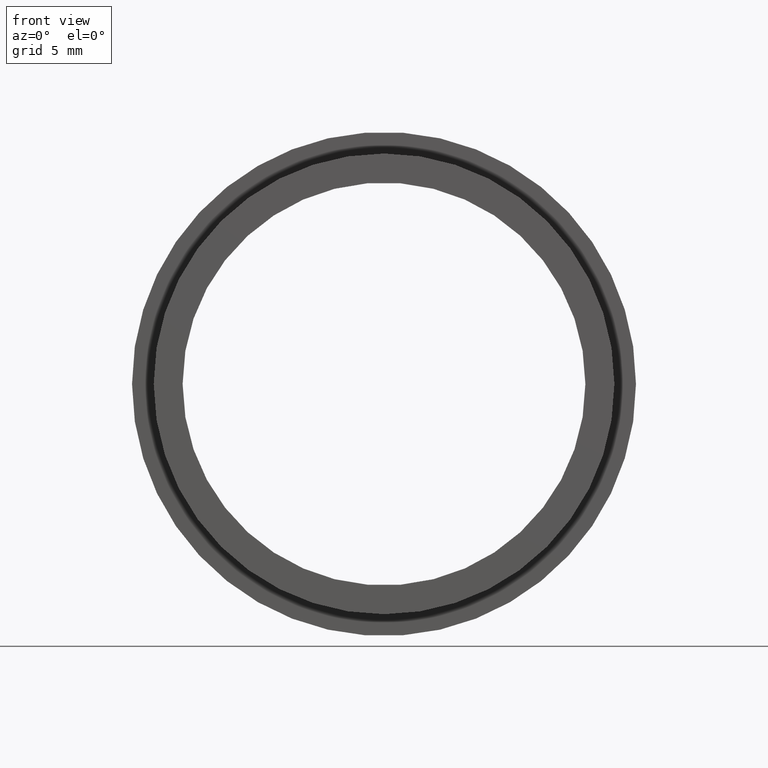
[diagram: clean part render]
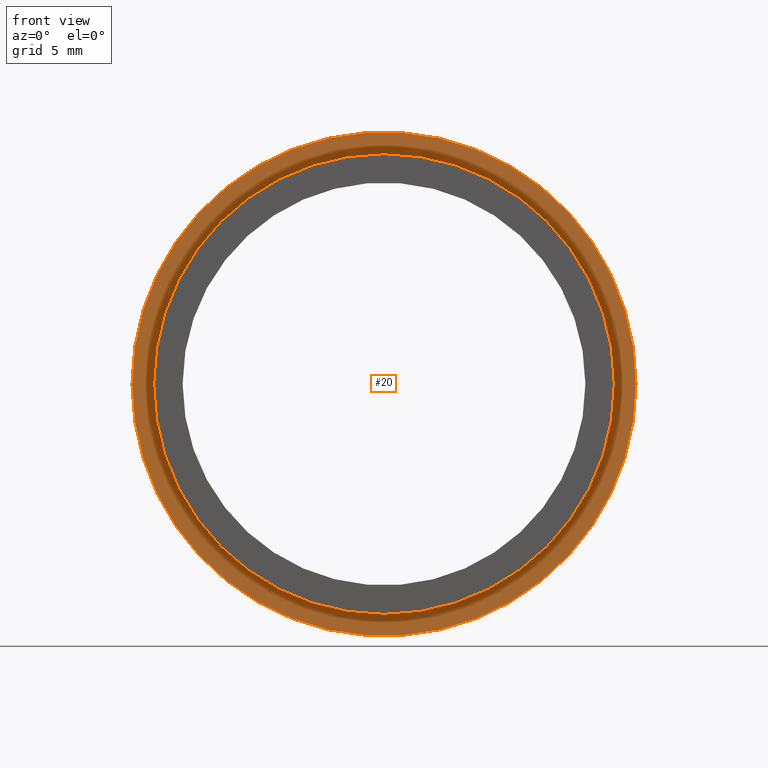
[diagram: same view with one face highlighted and labeled with its STEP entity id]
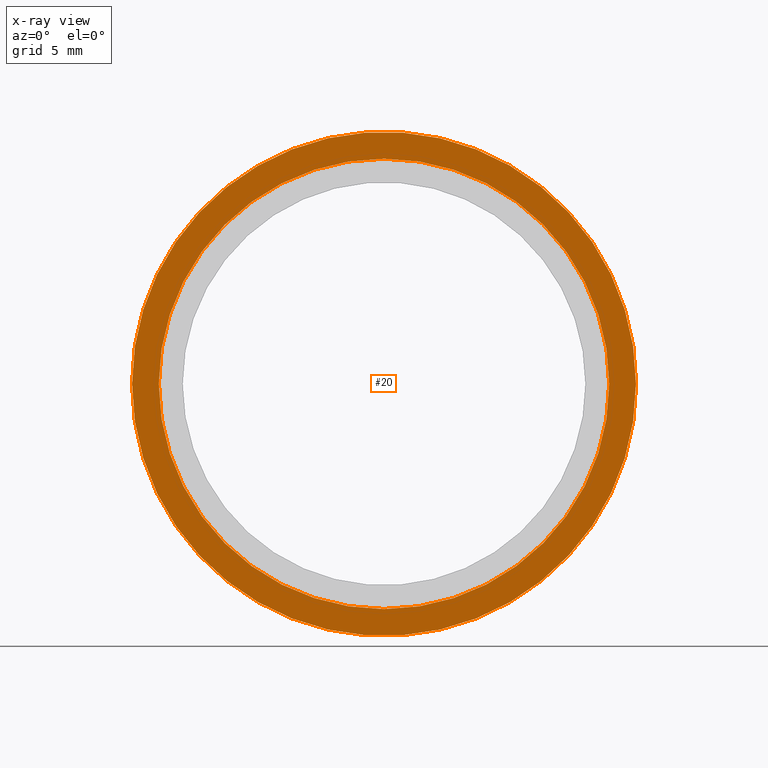
[diagram: x-ray of the same camera — body ghosted, the highlighted face saturated]
A machine part, front view. The second image highlights one B-rep face of the part: STEP entity #20.
The next image is the same camera in x-ray: the body ghosted, the highlighted face saturated — about 0% of this face is hidden behind the body in this view.
In plain terms, the highlighted planar face has unit normal (-0, 1, 0).
Its self-contained STEP definition (entity closure, byte-faithful):
#20 = ADVANCED_FACE ( 'NONE', ( #433, #328 ), #121, .F. ) ;
#28 = CARTESIAN_POINT ( 'NONE',  ( 11.35000000000000100, 2.954535588880335500, 0.0000000000000000000 ) ) ;
#36 = VERTEX_POINT ( 'NONE', #160 ) ;
#73 = EDGE_LOOP ( 'NONE', ( #346, #111 ) ) ;
#86 = CARTESIAN_POINT ( 'NONE',  ( 1.706114563249712500E-015, 2.954535588880332900, 0.0000000000000000000 ) ) ;
#90 = DIRECTION ( 'NONE',  ( -1.000000000000000000, -1.224646799147351000E-016, 0.0000000000000000000 ) ) ;
#105 = AXIS2_PLACEMENT_3D ( 'NONE', #86, #320, #384 ) ;
#106 = EDGE_CURVE ( 'NONE', #297, #405, #151, .T. ) ;
#111 = ORIENTED_EDGE ( 'NONE', *, *, #319, .T. ) ;
#121 = PLANE ( 'NONE',  #140 ) ;
#128 = AXIS2_PLACEMENT_3D ( 'NONE', #182, #374, #188 ) ;
#140 = AXIS2_PLACEMENT_3D ( 'NONE', #28, #225, #90 ) ;
#151 = CIRCLE ( 'NONE', #362, 12.69999999999999800 ) ;
#160 = CARTESIAN_POINT ( 'NONE',  ( -11.34999999999999800, 2.954535588880331500, 0.0000000000000000000 ) ) ;
#162 = ORIENTED_EDGE ( 'NONE', *, *, #106, .F. ) ;
#166 = AXIS2_PLACEMENT_3D ( 'NONE', #221, #313, #285 ) ;
#174 = EDGE_CURVE ( 'NONE', #36, #262, #395, .T. ) ;
#182 = CARTESIAN_POINT ( 'NONE',  ( 1.706114563249712500E-015, 2.954535588880332900, 0.0000000000000000000 ) ) ;
#184 = DIRECTION ( 'NONE',  ( -1.000000000000000000, -1.365923996832131900E-016, 0.0000000000000000000 ) ) ;
#188 = DIRECTION ( 'NONE',  ( -1.000000000000000000, -1.365923996832131900E-016, 0.0000000000000000000 ) ) ;
#211 = CIRCLE ( 'NONE', #105, 11.35000000000000000 ) ;
#221 = CARTESIAN_POINT ( 'NONE',  ( 1.706114563249712500E-015, 2.954535588880332900, 0.0000000000000000000 ) ) ;
#225 = DIRECTION ( 'NONE',  ( -1.224646799147351000E-016, 1.000000000000000000, 0.0000000000000000000 ) ) ;
#234 = CIRCLE ( 'NONE', #128, 12.69999999999999800 ) ;
#252 = CARTESIAN_POINT ( 'NONE',  ( 11.35000000000000100, 2.954535588880334200, 1.389974117032245900E-015 ) ) ;
#262 = VERTEX_POINT ( 'NONE', #252 ) ;
#285 = DIRECTION ( 'NONE',  ( -1.000000000000000000, -1.146293045799652200E-016, 0.0000000000000000000 ) ) ;
#286 = DIRECTION ( 'NONE',  ( -1.224646799147351000E-016, 1.000000000000000000, -0.0000000000000000000 ) ) ;
#297 = VERTEX_POINT ( 'NONE', #337 ) ;
#313 = DIRECTION ( 'NONE',  ( -1.224646799147351000E-016, 1.000000000000000000, -0.0000000000000000000 ) ) ;
#319 = EDGE_CURVE ( 'NONE', #262, #36, #211, .T. ) ;
#320 = DIRECTION ( 'NONE',  ( -1.224646799147351000E-016, 1.000000000000000000, -0.0000000000000000000 ) ) ;
#328 = FACE_BOUND ( 'NONE', #73, .T. ) ;
#337 = CARTESIAN_POINT ( 'NONE',  ( -12.69999999999999600, 2.954535588880331100, 0.0000000000000000000 ) ) ;
#345 = EDGE_CURVE ( 'NONE', #405, #297, #234, .T. ) ;
#346 = ORIENTED_EDGE ( 'NONE', *, *, #174, .T. ) ;
#362 = AXIS2_PLACEMENT_3D ( 'NONE', #378, #286, #184 ) ;
#367 = ORIENTED_EDGE ( 'NONE', *, *, #345, .F. ) ;
#374 = DIRECTION ( 'NONE',  ( -1.224646799147351000E-016, 1.000000000000000000, -0.0000000000000000000 ) ) ;
#377 = CARTESIAN_POINT ( 'NONE',  ( 12.69999999999999900, 2.954535588880334600, 1.555301434917138200E-015 ) ) ;
#378 = CARTESIAN_POINT ( 'NONE',  ( 1.706114563249712500E-015, 2.954535588880332900, 0.0000000000000000000 ) ) ;
#384 = DIRECTION ( 'NONE',  ( -1.000000000000000000, -1.146293045799652200E-016, 0.0000000000000000000 ) ) ;
#395 = CIRCLE ( 'NONE', #166, 11.35000000000000000 ) ;
#402 = EDGE_LOOP ( 'NONE', ( #162, #367 ) ) ;
#405 = VERTEX_POINT ( 'NONE', #377 ) ;
#433 = FACE_OUTER_BOUND ( 'NONE', #402, .T. ) ;